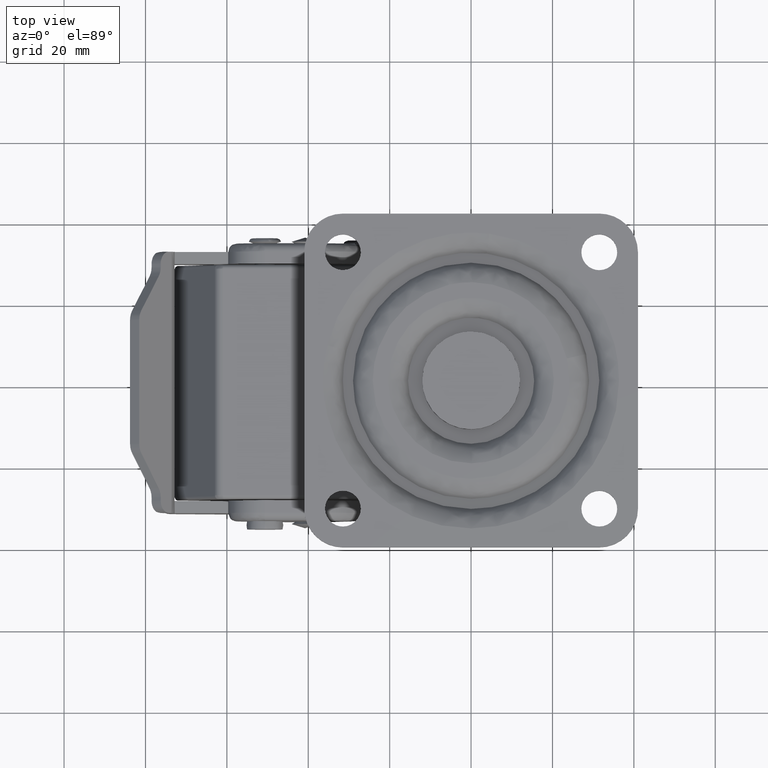
[diagram: clean part render]
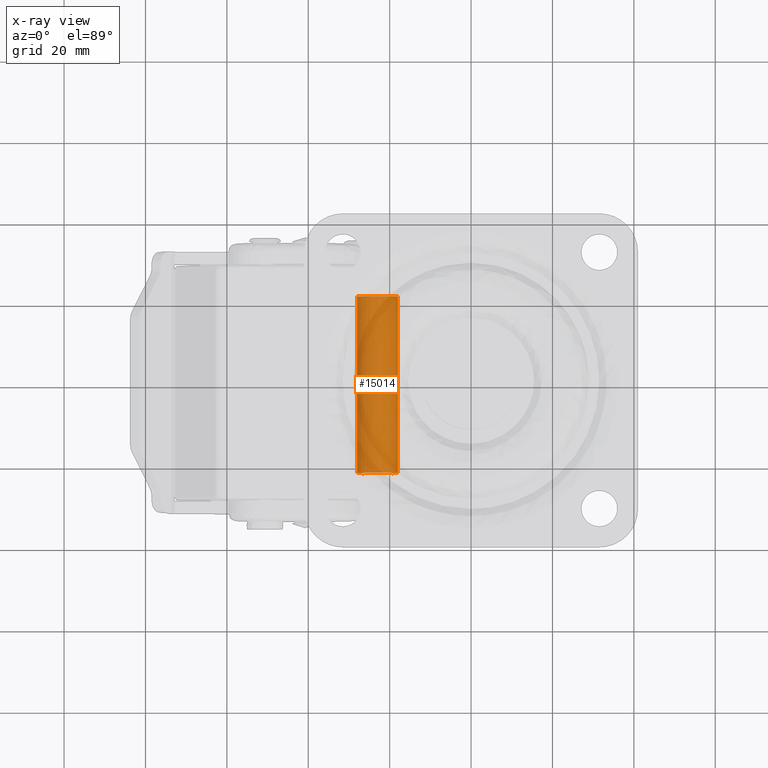
[diagram: x-ray — body ghosted, one internal face saturated and labeled with its STEP entity id]
A machine part, top view, then the same camera in x-ray: the body is ghosted and one INTERNAL B-rep face — a face not visible from any outside direction — is saturated and labeled: STEP entity #15014.
In plain terms, the highlighted face is a freeform B-spline surface patch.
Its self-contained STEP definition (entity closure, byte-faithful):
#14876=CARTESIAN_POINT('',(3.566252245770907,22.784996850000049,-66.004546321499248));
#14877=CARTESIAN_POINT('',(7.070798567270160,22.784996850000045,-62.438294075728351));
#14878=CARTESIAN_POINT('',(3.504546321499253,22.784996850000049,-58.933747754229103));
#14879=CARTESIAN_POINT('',(-0.061705924271653,22.784996850000045,-55.429201432729847));
#14880=CARTESIAN_POINT('',(-3.566252245770907,22.784996850000049,-58.995453678500752));
#14881=CARTESIAN_POINT('',(-7.070798567270160,22.784996850000045,-62.561705924271656));
#14882=CARTESIAN_POINT('',(-3.504546321499253,22.784996850000049,-66.066252245770912));
#14883=CARTESIAN_POINT('',(3.566252245770907,-22.812121846250051,-66.004546321499248));
#14884=CARTESIAN_POINT('',(7.070798567270160,-22.812121846250054,-62.438294075728351));
#14885=CARTESIAN_POINT('',(3.504546321499253,-22.812121846250051,-58.933747754229103));
#14886=CARTESIAN_POINT('',(-0.061705924271653,-22.812121846250054,-55.429201432729847));
#14887=CARTESIAN_POINT('',(-3.566252245770907,-22.812121846250051,-58.995453678500752));
#14888=CARTESIAN_POINT('',(-7.070798567270160,-22.812121846250054,-62.561705924271656));
#14889=CARTESIAN_POINT('',(-3.504546321499253,-22.812121846250051,-66.066252245770912));
#14897=(BOUNDED_SURFACE()B_SPLINE_SURFACE(2,1,((#14876,#14883),(#14877,#14884),(#14878,#14885),(#14879,#14886),(#14880,#14887),(#14881,#14888),(#14882,#14889)),.UNSPECIFIED.,.F.,.F.,.U.)B_SPLINE_SURFACE_WITH_KNOTS((3,2,2,3),(2,2),(0.0,8.284271247461916,16.568542494923829,24.852813742385749),(0.0,45.597118696250106),.UNSPECIFIED.)GEOMETRIC_REPRESENTATION_ITEM()RATIONAL_B_SPLINE_SURFACE(((1.0,1.0),(0.707106781186548,0.707106781186548),(1.0,1.0),(0.707106781186548,0.707106781186548),(1.0,1.0),(0.707106781186548,0.707106781186548),(1.0,1.0)))REPRESENTATION_ITEM('')SURFACE());
#14898=CARTESIAN_POINT('',(4.999999999999467,21.699997000000049,-62.500002309261369));
#14899=VERTEX_POINT('',#14898);
#14900=CARTESIAN_POINT('',(3.566252570282077,21.699996999998110,-66.004546814815029));
#14901=VERTEX_POINT('',#14900);
#14902=CARTESIAN_POINT('',(4.999999999999467,21.699997000000049,-62.500002309261369));
#14903=CARTESIAN_POINT('',(5.000550493253278,21.699996999999680,-63.106871498728466));
#14904=CARTESIAN_POINT('',(4.828456438078133,21.699996999999211,-64.036846795902491));
#14905=CARTESIAN_POINT('',(4.249574789983335,21.699996999998550,-65.201523093125743));
#14906=CARTESIAN_POINT('',(3.821483385775014,21.699996999998241,-65.744919812517239));
#14907=CARTESIAN_POINT('',(3.566252570282077,21.699996999998110,-66.004546814815029));
#14908=B_SPLINE_CURVE_WITH_KNOTS('',3,(#14902,#14903,#14904,#14905,#14906,#14907),.UNSPECIFIED.,.F.,.U.,(4,1,1,4),(0.000000028349477,1.820368274355606,2.791230301123565,3.883450919852655),.UNSPECIFIED.);
#14909=EDGE_CURVE('',#14899,#14901,#14908,.T.);
#14910=ORIENTED_EDGE('',*,*,#14909,.T.);
#14911=CARTESIAN_POINT('',(3.566251745898896,-21.699997000000049,-66.004546006631742));
#14912=VERTEX_POINT('',#14911);
#14913=CARTESIAN_POINT('',(3.566252570282077,21.699996999998110,-66.004546814815029));
#14914=CARTESIAN_POINT('',(3.566251745898896,-21.699997000000049,-66.004546006631742));
#14915=QUASI_UNIFORM_CURVE('',1,(#14913,#14914),.UNSPECIFIED.,.F.,.U.);
#14916=EDGE_CURVE('',#14901,#14912,#14915,.T.);
#14917=ORIENTED_EDGE('',*,*,#14916,.T.);
#14918=CARTESIAN_POINT('',(4.999999999999467,-21.699997000000049,-62.499997690738631));
#14919=VERTEX_POINT('',#14918);
#14920=CARTESIAN_POINT('',(3.566251745898896,-21.699997000000049,-66.004546006631742));
#14921=CARTESIAN_POINT('',(3.821474884011135,-21.699997000000032,-65.744917849883478));
#14922=CARTESIAN_POINT('',(4.249573006561743,-21.699997000000099,-65.201520809621542));
#14923=CARTESIAN_POINT('',(4.828505024445477,-21.699997000000000,-64.036854166502408));
#14924=CARTESIAN_POINT('',(5.000491415466742,-21.699997000000089,-63.106856308799117));
#14925=CARTESIAN_POINT('',(4.999999999999467,-21.699997000000049,-62.499997690738631));
#14926=B_SPLINE_CURVE_WITH_KNOTS('',3,(#14920,#14921,#14922,#14923,#14924,#14925),.UNSPECIFIED.,.F.,.U.,(4,1,1,4),(0.000000028349032,1.092221820420039,2.063084890096186,3.883455091769090),.UNSPECIFIED.);
#14927=EDGE_CURVE('',#14912,#14919,#14926,.T.);
#14928=ORIENTED_EDGE('',*,*,#14927,.T.);
#14929=CARTESIAN_POINT('',(0.0,-21.699997000000049,-57.500000000000000));
#14930=VERTEX_POINT('',#14929);
#14931=CARTESIAN_POINT('',(4.999999999999467,-21.699997000000049,-62.499997690738631));
#14932=CARTESIAN_POINT('',(5.000660256277575,-21.699997000000032,-61.845427019847293));
#14933=CARTESIAN_POINT('',(4.771834136036012,-21.699997000000089,-60.700498291143511));
#14934=CARTESIAN_POINT('',(4.006314765665325,-21.699997000000032,-59.423791915848341));
#14935=CARTESIAN_POINT('',(3.076189274030050,-21.699997000000081,-58.493697353420693));
#14936=CARTESIAN_POINT('',(1.799513789180814,-21.699997000000000,-57.728153585854812));
#14937=CARTESIAN_POINT('',(0.654566184441204,-21.699997000000071,-57.499344628451801));
#14938=CARTESIAN_POINT('',(0.0,-21.699997000000049,-57.500000000000000));
#14939=B_SPLINE_CURVE_WITH_KNOTS('',3,(#14931,#14932,#14933,#14934,#14935,#14936,#14937,#14938),.UNSPECIFIED.,.F.,.U.,(4,1,1,1,1,4),(0.000000075463123,1.963544411741305,3.436216392147020,4.417961106838185,5.890633083118358,7.854177420102313),.UNSPECIFIED.);
#14940=EDGE_CURVE('',#14919,#14930,#14939,.T.);
#14941=ORIENTED_EDGE('',*,*,#14940,.T.);
#14942=CARTESIAN_POINT('',(-4.999999999999466,-21.699997000000049,-62.500002309261411));
#14943=VERTEX_POINT('',#14942);
#14944=CARTESIAN_POINT('',(0.0,-21.699997000000049,-57.500000000000000));
#14945=CARTESIAN_POINT('',(-0.654633766472660,-21.699997000000049,-57.499268651238481));
#14946=CARTESIAN_POINT('',(-1.635799039419090,-21.699997000000071,-57.695645126769172));
#14947=CARTESIAN_POINT('',(-2.795759569377806,-21.699997000000049,-58.315876415255062));
#14948=CARTESIAN_POINT('',(-3.558336088279024,-21.699997000000039,-58.941673592545179));
#14949=CARTESIAN_POINT('',(-4.184114759528484,-21.699997000000060,-59.704236695206930));
#14950=CARTESIAN_POINT('',(-4.804368249099664,-21.699997000000049,-60.864208407584002));
#14951=CARTESIAN_POINT('',(-5.000726165963928,-21.699997000000049,-61.845365314538867));
#14952=CARTESIAN_POINT('',(-4.999999999999466,-21.699997000000049,-62.500002309261411));
#14953=B_SPLINE_CURVE_WITH_KNOTS('',3,(#14944,#14945,#14946,#14947,#14948,#14949,#14950,#14951,#14952),.UNSPECIFIED.,.F.,.U.,(4,1,1,1,1,1,4),(0.000000072300756,1.963545059918147,2.945341651725792,3.927090050460819,4.908838442518412,5.890635036331934,7.854180023242996),.UNSPECIFIED.);
#14954=EDGE_CURVE('',#14930,#14943,#14953,.T.);
#14955=ORIENTED_EDGE('',*,*,#14954,.T.);
#14956=CARTESIAN_POINT('',(-3.504546813733445,-21.699997000000049,-66.066252571344990));
#14957=VERTEX_POINT('',#14956);
#14958=CARTESIAN_POINT('',(-4.999999999999466,-21.699997000000049,-62.500002309261411));
#14959=CARTESIAN_POINT('',(-5.000069667605056,-21.699997000000071,-62.872253064037793));
#14960=CARTESIAN_POINT('',(-4.921091783062838,-21.699997000000039,-63.575340356215882));
#14961=CARTESIAN_POINT('',(-4.499537390755967,-21.699997000000021,-64.836888686042030));
#14962=CARTESIAN_POINT('',(-3.947550825095524,-21.699997000000081,-65.631757863999567));
#14963=CARTESIAN_POINT('',(-3.504546813733445,-21.699997000000049,-66.066252571344990));
#14964=B_SPLINE_CURVE_WITH_KNOTS('',3,(#14958,#14959,#14960,#14961,#14962,#14963),.UNSPECIFIED.,.F.,.U.,(4,1,1,4),(0.000000031779646,1.116766127994258,2.109446269493319,3.970723708929411),.UNSPECIFIED.);
#14965=EDGE_CURVE('',#14943,#14957,#14964,.T.);
#14966=ORIENTED_EDGE('',*,*,#14965,.T.);
#14967=CARTESIAN_POINT('',(-3.504546007683367,21.699997000001989,-66.066251744865468));
#14968=VERTEX_POINT('',#14967);
#14969=CARTESIAN_POINT('',(-3.504546007683367,21.699997000001989,-66.066251744865468));
#14970=CARTESIAN_POINT('',(-3.504546813733445,-21.699997000000049,-66.066252571344990));
#14971=QUASI_UNIFORM_CURVE('',1,(#14969,#14970),.UNSPECIFIED.,.F.,.U.);
#14972=EDGE_CURVE('',#14968,#14957,#14971,.T.);
#14973=ORIENTED_EDGE('',*,*,#14972,.F.);
#14974=CARTESIAN_POINT('',(-4.999999999999466,21.699997000000049,-62.499997690738589));
#14975=VERTEX_POINT('',#14974);
#14976=CARTESIAN_POINT('',(-3.504546007683367,21.699997000001989,-66.066251744865468));
#14977=CARTESIAN_POINT('',(-3.888326110285185,21.699997000001780,-65.689585152112883));
#14978=CARTESIAN_POINT('',(-4.408210593734363,21.699997000001421,-64.979755641976766));
#14979=CARTESIAN_POINT('',(-4.891982554845284,21.699997000000700,-63.740746964880778));
#14980=CARTESIAN_POINT('',(-5.000140740406166,21.699997000000302,-62.954978246041058));
#14981=CARTESIAN_POINT('',(-4.999999999999466,21.699997000000049,-62.499997690738589));
#14982=B_SPLINE_CURVE_WITH_KNOTS('',3,(#14976,#14977,#14978,#14979,#14980,#14981),.UNSPECIFIED.,.F.,.U.,(4,1,1,4),(0.000000031777971,1.613109164297229,2.605789687505493,3.970727865033338),.UNSPECIFIED.);
#14983=EDGE_CURVE('',#14968,#14975,#14982,.T.);
#14984=ORIENTED_EDGE('',*,*,#14983,.T.);
#14985=CARTESIAN_POINT('',(0.0,21.699997000000049,-57.500000000000000));
#14986=VERTEX_POINT('',#14985);
#14987=CARTESIAN_POINT('',(-4.999999999999466,21.699997000000049,-62.499997690738589));
#14988=CARTESIAN_POINT('',(-5.000091315532446,21.699997000000039,-62.090940073402123));
#14989=CARTESIAN_POINT('',(-4.909140409418165,21.699997000000089,-61.354661308973881));
#14990=CARTESIAN_POINT('',(-4.576766359877878,21.699996999999978,-60.425848605103802));
#14991=CARTESIAN_POINT('',(-4.131972076332398,21.699997000000060,-59.640693393131052));
#14992=CARTESIAN_POINT('',(-3.558317668645425,21.699997000000032,-58.941700630465050));
#14993=CARTESIAN_POINT('',(-2.668767467775547,21.699997000000089,-58.211338337210087));
#14994=CARTESIAN_POINT('',(-1.472540879080587,21.699996999999978,-57.645743850751217));
#14995=CARTESIAN_POINT('',(-0.490887070038816,21.699997000000089,-57.499783958901403));
#14996=CARTESIAN_POINT('',(0.0,21.699997000000049,-57.500000000000000));
#14997=B_SPLINE_CURVE_WITH_KNOTS('',3,(#14987,#14988,#14989,#14990,#14991,#14992,#14993,#14994,#14995,#14996),.UNSPECIFIED.,.F.,.U.,(4,1,1,1,1,1,1,4),(0.000000075464509,1.227191788650832,2.208997705543864,2.945340678948035,3.927088745094832,4.908836817918983,6.381537764993992,7.854177420102289),.UNSPECIFIED.);
#14998=EDGE_CURVE('',#14975,#14986,#14997,.T.);
#14999=ORIENTED_EDGE('',*,*,#14998,.T.);
#15000=CARTESIAN_POINT('',(0.0,21.699997000000049,-57.500000000000000));
#15001=CARTESIAN_POINT('',(0.490897368161522,21.699997000000021,-57.499767906358642));
#15002=CARTESIAN_POINT('',(1.308880123279703,21.699997000000049,-57.621510213302997));
#15003=CARTESIAN_POINT('',(2.372189765400853,21.699997000000060,-58.061965425822549));
#15004=CARTESIAN_POINT('',(3.192407577052154,21.699997000000032,-58.610036963338743));
#15005=CARTESIAN_POINT('',(4.006321643530423,21.699997000000049,-59.423784730795902));
#15006=CARTESIAN_POINT('',(4.771832280751822,21.699997000000049,-60.700504966273733));
#15007=CARTESIAN_POINT('',(5.000661072144562,21.699997000000039,-61.845430865232601));
#15008=CARTESIAN_POINT('',(4.999999999999467,21.699997000000049,-62.500002309261369));
#15009=B_SPLINE_CURVE_WITH_KNOTS('',3,(#15000,#15001,#15002,#15003,#15004,#15005,#15006,#15007,#15008),.UNSPECIFIED.,.F.,.U.,(4,1,1,1,1,1,4),(0.000000072298089,1.472640215601802,2.454449904077730,3.436217526247801,4.417962565874586,5.890635036331533,7.854180023242979),.UNSPECIFIED.);
#15010=EDGE_CURVE('',#14986,#14899,#15009,.T.);
#15011=ORIENTED_EDGE('',*,*,#15010,.T.);
#15012=EDGE_LOOP('',(#14910,#14917,#14928,#14941,#14955,#14966,#14973,#14984,#14999,#15011));
#15013=FACE_OUTER_BOUND('',#15012,.T.);
#15014=ADVANCED_FACE('',(#15013),#14897,.F.);